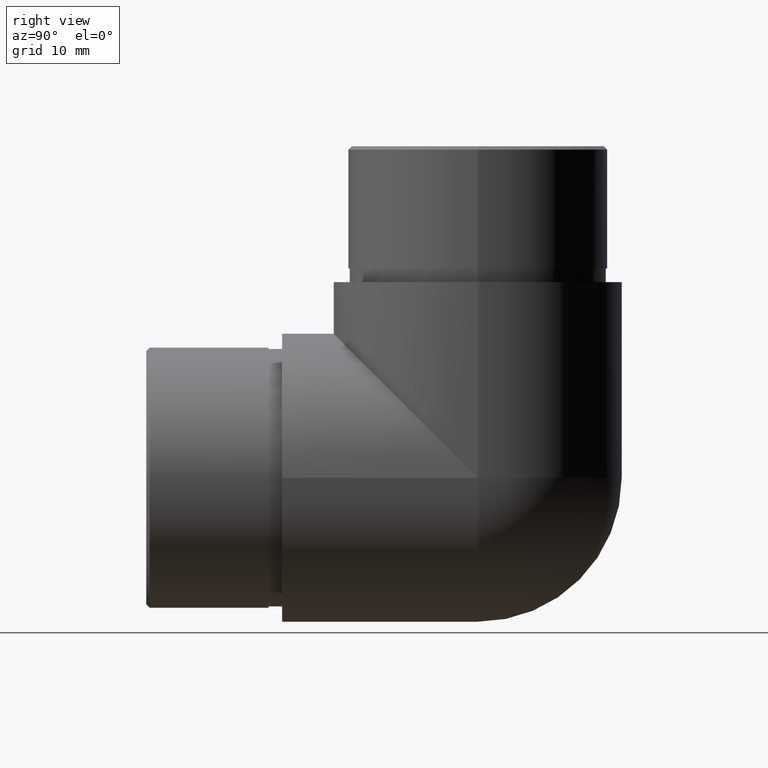
[diagram: clean part render]
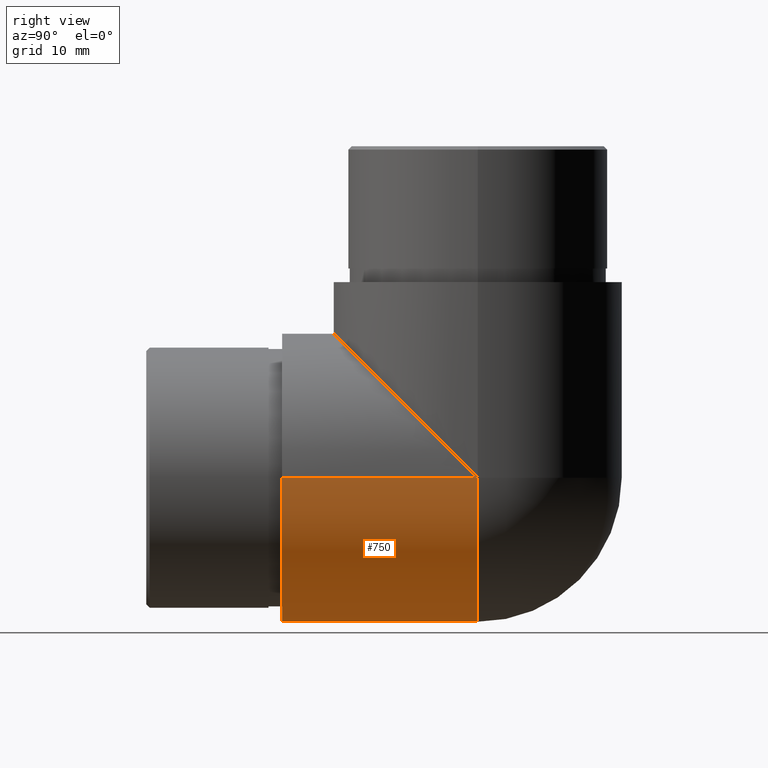
[diagram: same view with one face highlighted and labeled with its STEP entity id]
A machine part, right view. The second image highlights one B-rep face of the part: STEP entity #750.
In plain terms, the highlighted cylindrical surface (partial cylindrical patch) has radius 21.2 mm, axis along (0, -1, 0).
Its self-contained STEP definition (entity closure, byte-faithful):
#750 = ADVANCED_FACE ( 'NONE', ( #5576 ), #1436, .T. ) ;
#791 = CIRCLE ( 'NONE', #8991, 21.19999999999999900 ) ;
#1436 = CYLINDRICAL_SURFACE ( 'NONE', #6246, 21.19999999999999900 ) ;
#1571 = LINE ( 'NONE', #7598, #4967 ) ;
#1966 = CARTESIAN_POINT ( 'NONE',  ( 3.469446951953614200E-015, 88.76265504461922300, 21.19999999999999900 ) ) ;
#2569 = CIRCLE ( 'NONE', #2817, 21.19999999999999900 ) ;
#2817 = AXIS2_PLACEMENT_3D ( 'NONE', #9174, #10124, #3432 ) ;
#2945 = ORIENTED_EDGE ( 'NONE', *, *, #10272, .T. ) ;
#3426 = EDGE_CURVE ( 'NONE', #10586, #10876, #1571, .T. ) ;
#3432 = DIRECTION ( 'NONE',  ( 0.0000000000000000000, 0.0000000000000000000, 1.000000000000000000 ) ) ;
#3450 = ORIENTED_EDGE ( 'NONE', *, *, #3426, .F. ) ;
#3476 = DIRECTION ( 'NONE',  ( 0.0000000000000000000, -1.000000000000000000, 0.0000000000000000000 ) ) ;
#3580 = CARTESIAN_POINT ( 'NONE',  ( 0.0000000000000000000, 88.76265504461922300, 2.063529856563289800E-015 ) ) ;
#3657 = DIRECTION ( 'NONE',  ( -0.0000000000000000000, 1.000000000000000000, -0.0000000000000000000 ) ) ;
#4019 = DIRECTION ( 'NONE',  ( 0.0000000000000000000, 0.0000000000000000000, -1.000000000000000000 ) ) ;
#4080 = CARTESIAN_POINT ( 'NONE',  ( -6.938893903907228400E-015, 28.80000000000000800, 21.20000000000000300 ) ) ;
#4967 = VECTOR ( 'NONE', #3657, 1000.000000000000000 ) ;
#5576 = FACE_OUTER_BOUND ( 'NONE', #11584, .T. ) ;
#5748 = ORIENTED_EDGE ( 'NONE', *, *, #6019, .F. ) ;
#6019 = EDGE_CURVE ( 'NONE', #11953, #10586, #2569, .T. ) ;
#6170 = CARTESIAN_POINT ( 'NONE',  ( 3.469446951953614200E-015, 28.80000000000000800, 2.063529856563289800E-015 ) ) ;
#6246 = AXIS2_PLACEMENT_3D ( 'NONE', #1966, #3476, #4019 ) ;
#6467 = CARTESIAN_POINT ( 'NONE',  ( 21.19999999999999600, 28.80000000000001100, 21.19999999999999900 ) ) ;
#6550 = CARTESIAN_POINT ( 'NONE',  ( 3.469446951953614200E-015, 0.0000000000000000000, 2.063529856563289800E-015 ) ) ;
#7098 = CARTESIAN_POINT ( 'NONE',  ( 21.19999999999999600, 0.0000000000000000000, 21.19999999999999900 ) ) ;
#7371 = LINE ( 'NONE', #3580, #9740 ) ;
#7500 = EDGE_CURVE ( 'NONE', #8257, #10876, #791, .T. ) ;
#7598 = CARTESIAN_POINT ( 'NONE',  ( 21.19999999999999600, 88.76265504461922300, 21.19999999999999900 ) ) ;
#8257 = VERTEX_POINT ( 'NONE', #6170 ) ;
#8781 = DIRECTION ( 'NONE',  ( 0.0000000000000000000, 0.0000000000000000000, -1.000000000000000000 ) ) ;
#8943 = DIRECTION ( 'NONE',  ( 0.0000000000000000000, -1.000000000000000000, 0.0000000000000000000 ) ) ;
#8991 = AXIS2_PLACEMENT_3D ( 'NONE', #4080, #8943, #8781 ) ;
#9174 = CARTESIAN_POINT ( 'NONE',  ( 3.469446951953614200E-015, 0.0000000000000000000, 21.19999999999999900 ) ) ;
#9648 = ORIENTED_EDGE ( 'NONE', *, *, #7500, .T. ) ;
#9740 = VECTOR ( 'NONE', #12020, 1000.000000000000000 ) ;
#10124 = DIRECTION ( 'NONE',  ( -0.0000000000000000000, -1.000000000000000000, -0.0000000000000000000 ) ) ;
#10272 = EDGE_CURVE ( 'NONE', #11953, #8257, #7371, .T. ) ;
#10586 = VERTEX_POINT ( 'NONE', #7098 ) ;
#10876 = VERTEX_POINT ( 'NONE', #6467 ) ;
#11584 = EDGE_LOOP ( 'NONE', ( #2945, #9648, #3450, #5748 ) ) ;
#11953 = VERTEX_POINT ( 'NONE', #6550 ) ;
#12020 = DIRECTION ( 'NONE',  ( -0.0000000000000000000, 1.000000000000000000, -0.0000000000000000000 ) ) ;